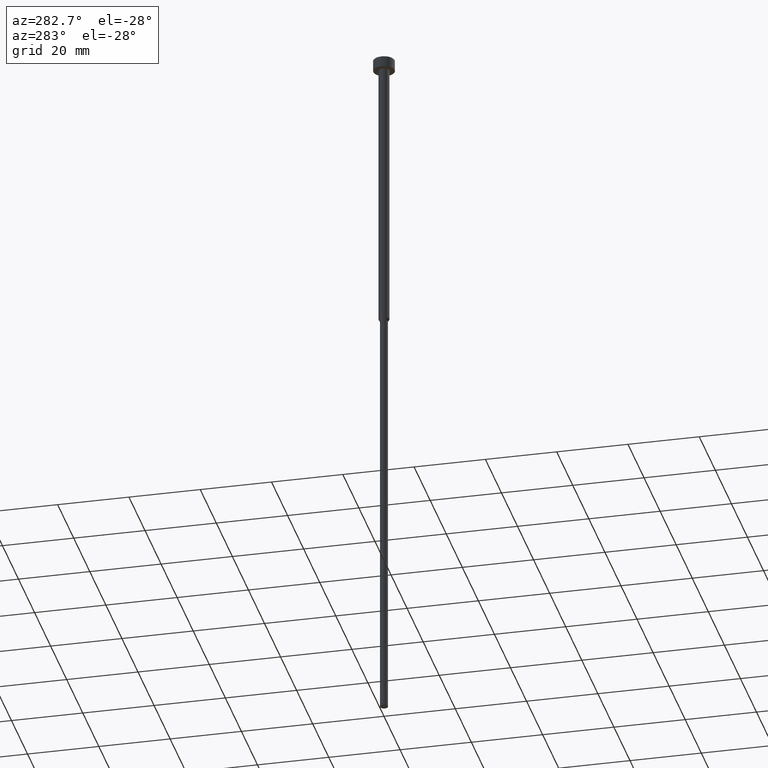
[diagram: clean part render]
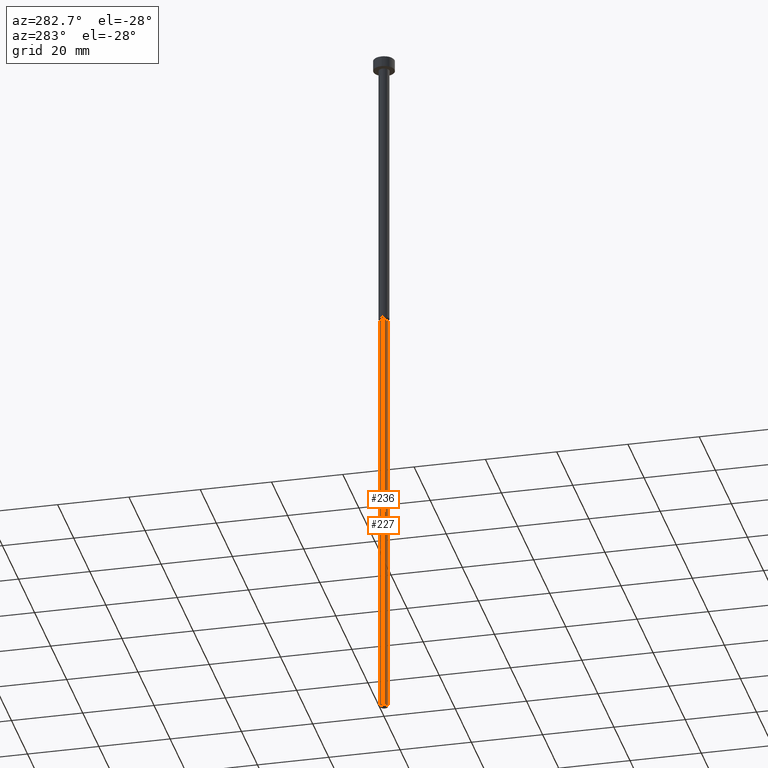
[diagram: same view with one multi-face feature highlighted, each face labeled with its STEP entity id]
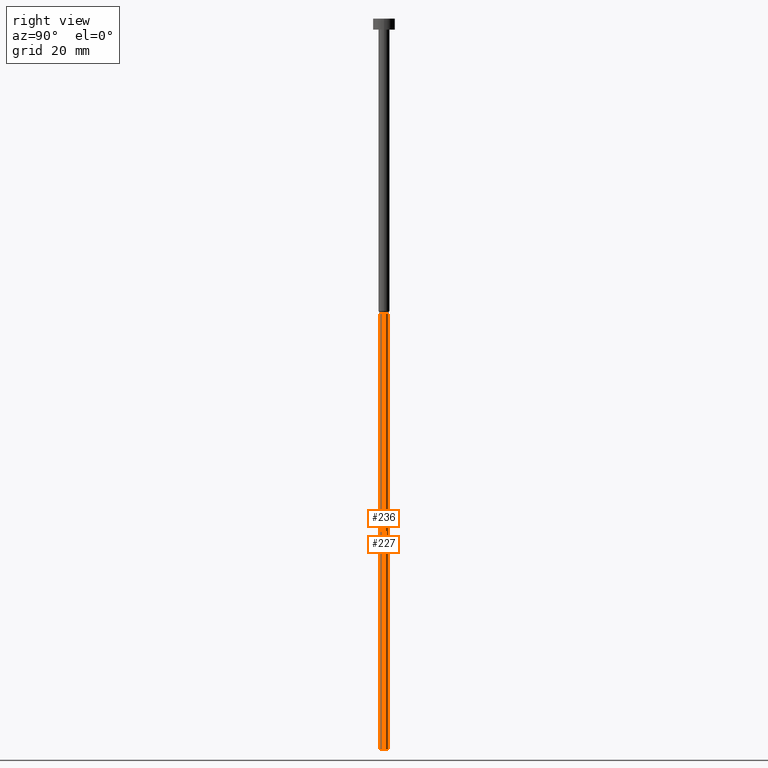
[diagram: same view with one multi-face feature highlighted, each face labeled with its STEP entity id]
A machine part, auxiliary view. The highlighted faces form ONE feature: a constant-radius fillet chain: 2 tangent blend faces with common blend radius 1.1 mm. The faces share edges in the B-rep.
A second angle (right view) of the same feature is appended — it is thin or edge-on in the first view.
Their STEP definitions:
[1] entity #236 (Cylinder):
#18 = ORIENTED_EDGE ( 'NONE', *, *, #326, .F. ) ;
#26 = AXIS2_PLACEMENT_3D ( 'NONE', #273, #296, #329 ) ;
#27 = CARTESIAN_POINT ( 'NONE',  ( 0.000000000000000000, 0.000000000000000000, -200.0000000000000000 ) ) ;
#32 = DIRECTION ( 'NONE',  ( -0.000000000000000000, -0.000000000000000000, 1.000000000000000000 ) ) ;
#45 = VERTEX_POINT ( 'NONE', #216 ) ;
#46 = LINE ( 'NONE', #258, #161 ) ;
#57 = CARTESIAN_POINT ( 'NONE',  ( -1.100000000000000089, 1.347111479062088503E-16, 0.000000000000000000 ) ) ;
#60 = ORIENTED_EDGE ( 'NONE', *, *, #266, .T. ) ;
#76 = EDGE_CURVE ( 'NONE', #207, #319, #46, .T. ) ;
#111 = CIRCLE ( 'NONE', #154, 1.100000000000000089 ) ;
#112 = CYLINDRICAL_SURFACE ( 'NONE', #26, 1.100000000000000089 ) ;
#120 = ORIENTED_EDGE ( 'NONE', *, *, #76, .T. ) ;
#124 = VERTEX_POINT ( 'NONE', #192 ) ;
#151 = DIRECTION ( 'NONE',  ( -0.000000000000000000, -0.000000000000000000, 1.000000000000000000 ) ) ;
#154 = AXIS2_PLACEMENT_3D ( 'NONE', #27, #32, #217 ) ;
#161 = VECTOR ( 'NONE', #233, 1000.000000000000000 ) ;
#166 = CARTESIAN_POINT ( 'NONE',  ( 1.100000000000000089, 0.000000000000000000, -200.0000000000000000 ) ) ;
#171 = FACE_OUTER_BOUND ( 'NONE', #212, .T. ) ;
#192 = CARTESIAN_POINT ( 'NONE',  ( -1.100000000000000089, 1.347111479062088503E-16, -200.0000000000000000 ) ) ;
#193 = AXIS2_PLACEMENT_3D ( 'NONE', #268, #274, #245 ) ;
#206 = LINE ( 'NONE', #57, #317 ) ;
#207 = VERTEX_POINT ( 'NONE', #166 ) ;
#212 = EDGE_LOOP ( 'NONE', ( #18, #60, #120, #278 ) ) ;
#216 = CARTESIAN_POINT ( 'NONE',  ( -1.100000000000000089, 1.347111479062088503E-16, -80.69282032302754715 ) ) ;
#217 = DIRECTION ( 'NONE',  ( 1.000000000000000000, 0.000000000000000000, 0.000000000000000000 ) ) ;
#233 = DIRECTION ( 'NONE',  ( -0.000000000000000000, -0.000000000000000000, 1.000000000000000000 ) ) ;
#235 = EDGE_CURVE ( 'NONE', #45, #319, #285, .T. ) ;
#236 = ADVANCED_FACE ( 'NONE', ( #171 ), #112, .T. ) ;
#245 = DIRECTION ( 'NONE',  ( 1.000000000000000000, 0.000000000000000000, 0.000000000000000000 ) ) ;
#251 = CARTESIAN_POINT ( 'NONE',  ( 1.100000000000000089, 0.000000000000000000, -80.69282032302754715 ) ) ;
#258 = CARTESIAN_POINT ( 'NONE',  ( 1.100000000000000089, 0.000000000000000000, 0.000000000000000000 ) ) ;
#266 = EDGE_CURVE ( 'NONE', #124, #207, #111, .T. ) ;
#268 = CARTESIAN_POINT ( 'NONE',  ( 0.000000000000000000, 0.000000000000000000, -80.69282032302754715 ) ) ;
#273 = CARTESIAN_POINT ( 'NONE',  ( 0.000000000000000000, 0.000000000000000000, 0.000000000000000000 ) ) ;
#274 = DIRECTION ( 'NONE',  ( -0.000000000000000000, -0.000000000000000000, 1.000000000000000000 ) ) ;
#278 = ORIENTED_EDGE ( 'NONE', *, *, #235, .F. ) ;
#285 = CIRCLE ( 'NONE', #193, 1.100000000000000089 ) ;
#296 = DIRECTION ( 'NONE',  ( -0.000000000000000000, -0.000000000000000000, 1.000000000000000000 ) ) ;
#317 = VECTOR ( 'NONE', #151, 1000.000000000000000 ) ;
#319 = VERTEX_POINT ( 'NONE', #251 ) ;
#326 = EDGE_CURVE ( 'NONE', #124, #45, #206, .T. ) ;
#329 = DIRECTION ( 'NONE',  ( 1.000000000000000000, 0.000000000000000000, 0.000000000000000000 ) ) ;
[2] entity #227 (Cylinder):
#16 = ORIENTED_EDGE ( 'NONE', *, *, #241, .T. ) ;
#45 = VERTEX_POINT ( 'NONE', #216 ) ;
#46 = LINE ( 'NONE', #258, #161 ) ;
#57 = CARTESIAN_POINT ( 'NONE',  ( -1.100000000000000089, 1.347111479062088503E-16, 0.000000000000000000 ) ) ;
#63 = ORIENTED_EDGE ( 'NONE', *, *, #271, .F. ) ;
#76 = EDGE_CURVE ( 'NONE', #207, #319, #46, .T. ) ;
#79 = CIRCLE ( 'NONE', #173, 1.100000000000000089 ) ;
#80 = CYLINDRICAL_SURFACE ( 'NONE', #136, 1.100000000000000089 ) ;
#99 = AXIS2_PLACEMENT_3D ( 'NONE', #250, #198, #138 ) ;
#107 = CARTESIAN_POINT ( 'NONE',  ( 0.000000000000000000, 0.000000000000000000, 0.000000000000000000 ) ) ;
#124 = VERTEX_POINT ( 'NONE', #192 ) ;
#136 = AXIS2_PLACEMENT_3D ( 'NONE', #107, #141, #269 ) ;
#138 = DIRECTION ( 'NONE',  ( 1.000000000000000000, 0.000000000000000000, 0.000000000000000000 ) ) ;
#141 = DIRECTION ( 'NONE',  ( -0.000000000000000000, -0.000000000000000000, 1.000000000000000000 ) ) ;
#151 = DIRECTION ( 'NONE',  ( -0.000000000000000000, -0.000000000000000000, 1.000000000000000000 ) ) ;
#158 = ORIENTED_EDGE ( 'NONE', *, *, #76, .F. ) ;
#161 = VECTOR ( 'NONE', #233, 1000.000000000000000 ) ;
#166 = CARTESIAN_POINT ( 'NONE',  ( 1.100000000000000089, 0.000000000000000000, -200.0000000000000000 ) ) ;
#172 = DIRECTION ( 'NONE',  ( 1.000000000000000000, 0.000000000000000000, 0.000000000000000000 ) ) ;
#173 = AXIS2_PLACEMENT_3D ( 'NONE', #196, #301, #172 ) ;
#192 = CARTESIAN_POINT ( 'NONE',  ( -1.100000000000000089, 1.347111479062088503E-16, -200.0000000000000000 ) ) ;
#196 = CARTESIAN_POINT ( 'NONE',  ( 0.000000000000000000, 0.000000000000000000, -200.0000000000000000 ) ) ;
#198 = DIRECTION ( 'NONE',  ( -0.000000000000000000, -0.000000000000000000, 1.000000000000000000 ) ) ;
#206 = LINE ( 'NONE', #57, #317 ) ;
#207 = VERTEX_POINT ( 'NONE', #166 ) ;
#216 = CARTESIAN_POINT ( 'NONE',  ( -1.100000000000000089, 1.347111479062088503E-16, -80.69282032302754715 ) ) ;
#227 = ADVANCED_FACE ( 'NONE', ( #353 ), #80, .T. ) ;
#233 = DIRECTION ( 'NONE',  ( -0.000000000000000000, -0.000000000000000000, 1.000000000000000000 ) ) ;
#241 = EDGE_CURVE ( 'NONE', #207, #124, #79, .T. ) ;
#250 = CARTESIAN_POINT ( 'NONE',  ( 0.000000000000000000, 0.000000000000000000, -80.69282032302754715 ) ) ;
#251 = CARTESIAN_POINT ( 'NONE',  ( 1.100000000000000089, 0.000000000000000000, -80.69282032302754715 ) ) ;
#258 = CARTESIAN_POINT ( 'NONE',  ( 1.100000000000000089, 0.000000000000000000, 0.000000000000000000 ) ) ;
#261 = ORIENTED_EDGE ( 'NONE', *, *, #326, .T. ) ;
#269 = DIRECTION ( 'NONE',  ( 1.000000000000000000, 0.000000000000000000, 0.000000000000000000 ) ) ;
#271 = EDGE_CURVE ( 'NONE', #319, #45, #350, .T. ) ;
#301 = DIRECTION ( 'NONE',  ( -0.000000000000000000, -0.000000000000000000, 1.000000000000000000 ) ) ;
#317 = VECTOR ( 'NONE', #151, 1000.000000000000000 ) ;
#319 = VERTEX_POINT ( 'NONE', #251 ) ;
#326 = EDGE_CURVE ( 'NONE', #124, #45, #206, .T. ) ;
#340 = EDGE_LOOP ( 'NONE', ( #16, #261, #63, #158 ) ) ;
#350 = CIRCLE ( 'NONE', #99, 1.100000000000000089 ) ;
#353 = FACE_OUTER_BOUND ( 'NONE', #340, .T. ) ;